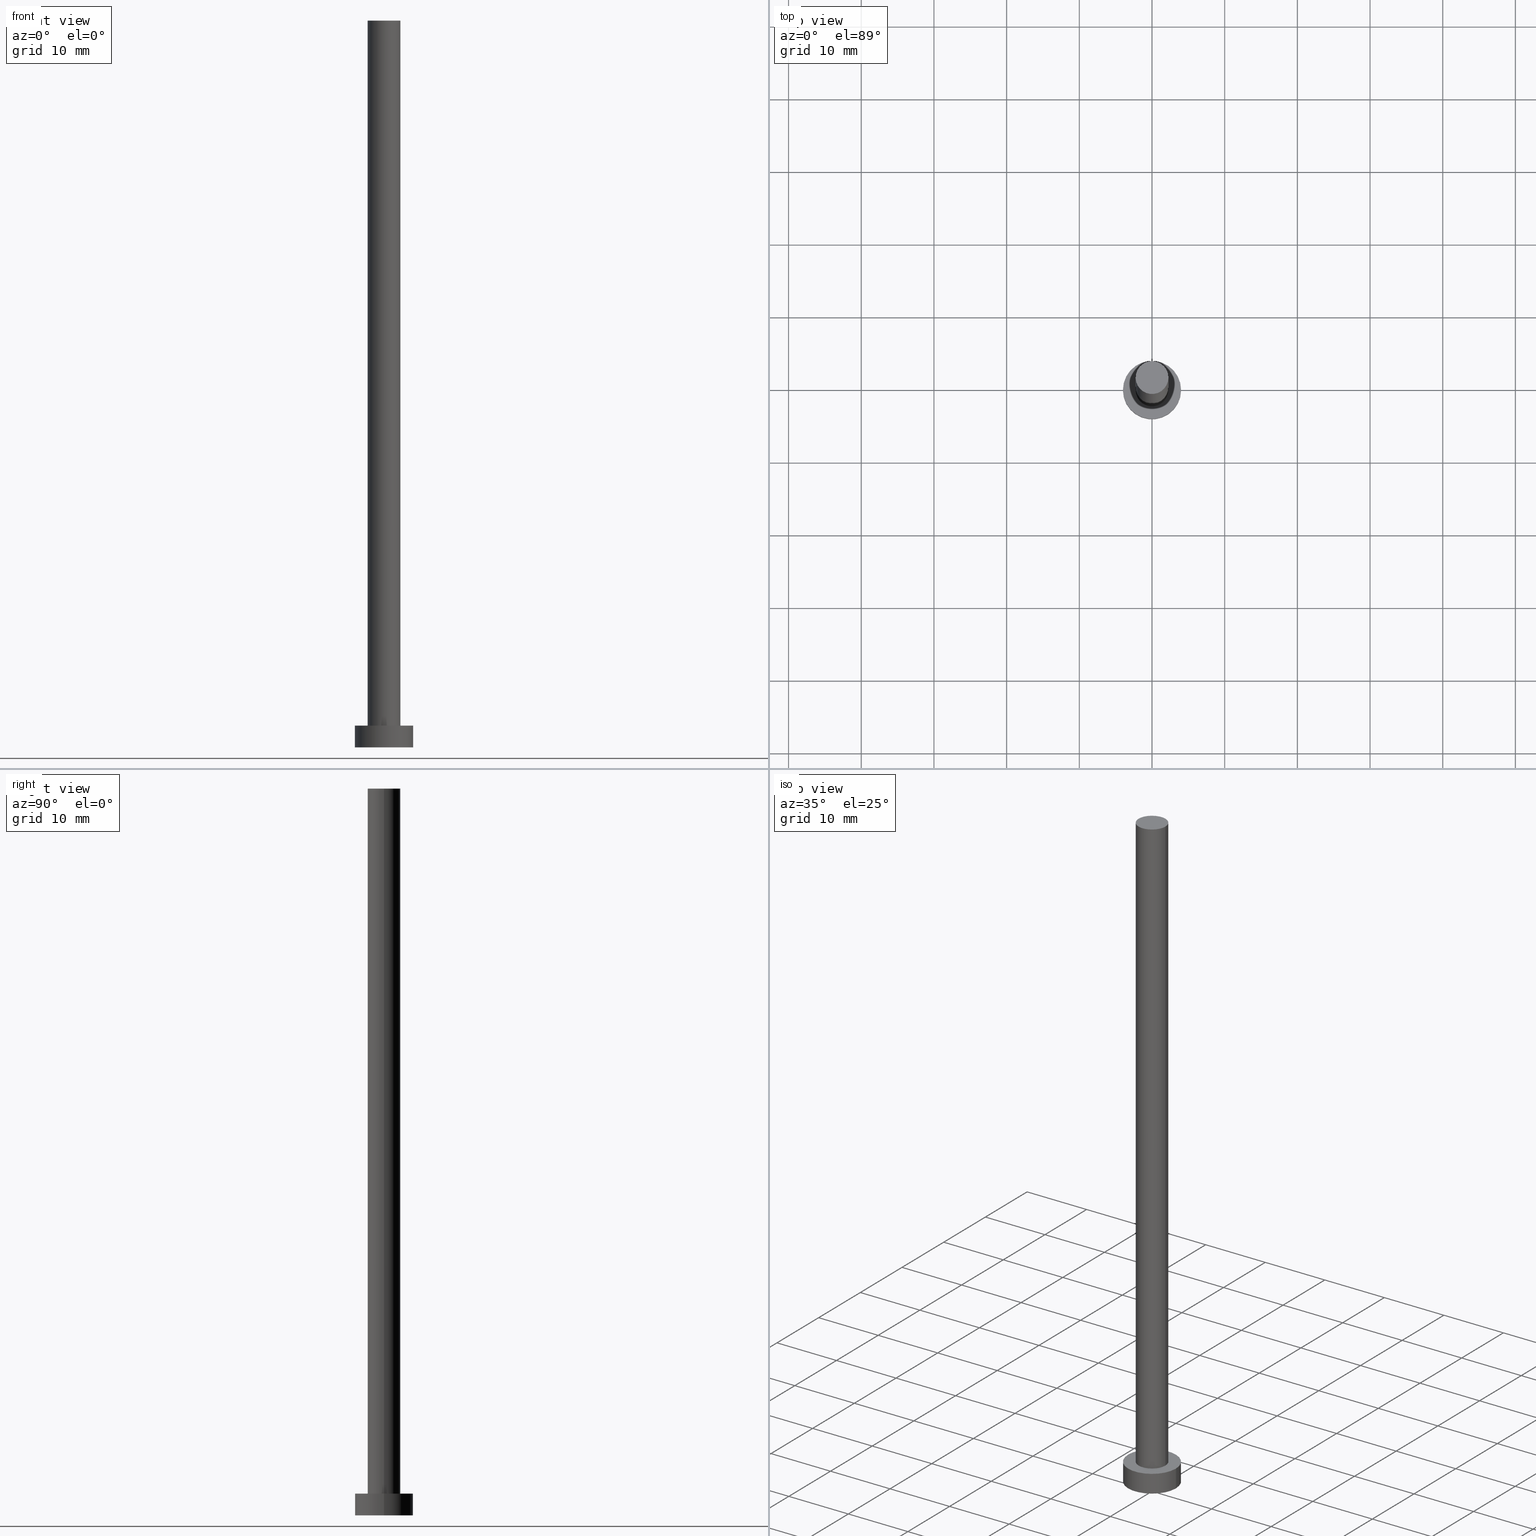
[diagram: canonical four-view strip — front | top / right | iso, engineering-drawing reading convention]
A machine part, canonical four-view strip (front | top / right | iso — engineering-drawing reading convention). The complete STEP part file that produces these views, byte-faithful:
ISO-10303-21;
HEADER;
FILE_DESCRIPTION (( 'STEP AP203' ),
    '1' );
FILE_NAME ('a07d.STEP',
    '2023-02-13T15:05:03',
    ( '' ),
    ( '' ),
    'SwSTEP 2.0',
    'SolidWorks 2019',
    '' );
FILE_SCHEMA (( 'CONFIG_CONTROL_DESIGN' ));
ENDSEC;

DATA;
#1 = FACE_OUTER_BOUND ( 'NONE', #209, .T. ) ;
#2 = CARTESIAN_POINT ( 'NONE',  ( 4.000000000000000000, 4.898587196589412829E-16, 3.000000000000000000 ) ) ;
#3 = APPROVAL_STATUS ( 'not_yet_approved' ) ;
#4 = FACE_OUTER_BOUND ( 'NONE', #173, .T. ) ;
#5 = DIRECTION ( 'NONE',  ( 1.000000000000000000, 0.000000000000000000, 0.000000000000000000 ) ) ;
#6 = CC_DESIGN_PERSON_AND_ORGANIZATION_ASSIGNMENT ( #31, #148, ( #86 ) ) ;
#7 = APPROVAL_ROLE ( '' ) ;
#8 = EDGE_CURVE ( 'NONE', #115, #13, #235, .T. ) ;
#9 = APPLICATION_PROTOCOL_DEFINITION ( 'international standard', 'config_control_design', 1994, #68 ) ;
#10 = AXIS2_PLACEMENT_3D ( 'NONE', #164, #99, #159 ) ;
#11 = LOCAL_TIME ( 16, 5, 3.000000000000000000, #183 ) ;
#12 = VERTEX_POINT ( 'NONE', #93 ) ;
#13 = VERTEX_POINT ( 'NONE', #73 ) ;
#14 = ORIENTED_EDGE ( 'NONE', *, *, #244, .T. ) ;
#15 = ORIENTED_EDGE ( 'NONE', *, *, #252, .T. ) ;
#16 = EDGE_CURVE ( 'NONE', #12, #210, #58, .T. ) ;
#17 = EDGE_LOOP ( 'NONE', ( #249, #254, #15, #92 ) ) ;
#18 = PLANE ( 'NONE',  #10 ) ;
#19 = AXIS2_PLACEMENT_3D ( 'NONE', #66, #144, #137 ) ;
#20 = LINE ( 'NONE', #79, #80 ) ;
#21 = ADVANCED_FACE ( 'NONE', ( #55 ), #150, .F. ) ;
#22 = APPROVAL_STATUS ( 'not_yet_approved' ) ;
#23 = DIRECTION ( 'NONE',  ( -0.000000000000000000, -0.000000000000000000, -1.000000000000000000 ) ) ;
#24 = LINE ( 'NONE', #240, #221 ) ;
#25 = VECTOR ( 'NONE', #136, 1000.000000000000000 ) ;
#26 = AXIS2_PLACEMENT_3D ( 'NONE', #161, #62, #149 ) ;
#27 = DIRECTION ( 'NONE',  ( -1.000000000000000000, 0.000000000000000000, 0.000000000000000000 ) ) ;
#28 = SECURITY_CLASSIFICATION_LEVEL ( 'unclassified' ) ;
#29 = APPLICATION_CONTEXT ( 'configuration controlled 3d designs of mechanical parts and assemblies' ) ;
#30 = APPROVAL_DATE_TIME ( #43, #198 ) ;
#31 = PERSON_AND_ORGANIZATION ( #156, #250 ) ;
#32 = CC_DESIGN_SECURITY_CLASSIFICATION ( #248, ( #130 ) ) ;
#33 = CIRCLE ( 'NONE', #208, 4.000000000000000000 ) ;
#34 = APPROVAL_PERSON_ORGANIZATION ( #127, #198, #216 ) ;
#35 = CARTESIAN_POINT ( 'NONE',  ( 0.000000000000000000, 0.000000000000000000, 0.000000000000000000 ) ) ;
#36 = EDGE_LOOP ( 'NONE', ( #113, #187, #251, #53 ) ) ;
#37 = DIRECTION ( 'NONE',  ( 0.000000000000000000, 0.000000000000000000, 1.000000000000000000 ) ) ;
#38 = CALENDAR_DATE ( 2023, 13, 2 ) ;
#39 = ORIENTED_EDGE ( 'NONE', *, *, #193, .F. ) ;
#40 = CARTESIAN_POINT ( 'NONE',  ( 0.000000000000000000, 0.000000000000000000, 100.0000000000000000 ) ) ;
#41 = CARTESIAN_POINT ( 'NONE',  ( 0.000000000000000000, 0.000000000000000000, 100.0000000000000000 ) ) ;
#42 = CARTESIAN_POINT ( 'NONE',  ( 0.000000000000000000, 0.000000000000000000, 3.000000000000000000 ) ) ;
#43 = DATE_AND_TIME ( #122, #167 ) ;
#44 = DIRECTION ( 'NONE',  ( 0.000000000000000000, 0.000000000000000000, 1.000000000000000000 ) ) ;
#45 = PERSON_AND_ORGANIZATION_ROLE ( 'design_supplier' ) ;
#46 = CARTESIAN_POINT ( 'NONE',  ( 0.000000000000000000, 0.000000000000000000, 3.000000000000000000 ) ) ;
#47 = PERSON_AND_ORGANIZATION_ROLE ( 'creator' ) ;
#48 = ADVANCED_FACE ( 'NONE', ( #227 ), #54, .T. ) ;
#49 = DIRECTION ( 'NONE',  ( 1.000000000000000000, 0.000000000000000000, 0.000000000000000000 ) ) ;
#50 = CLOSED_SHELL ( 'NONE', ( #223, #169, #48, #189, #21, #181, #52 ) ) ;
#51 = APPLICATION_PROTOCOL_DEFINITION ( 'international standard', 'config_control_design', 1994, #29 ) ;
#52 = ADVANCED_FACE ( 'NONE', ( #1 ), #220, .T. ) ;
#53 = ORIENTED_EDGE ( 'NONE', *, *, #246, .F. ) ;
#54 = CYLINDRICAL_SURFACE ( 'NONE', #89, 4.000000000000000000 ) ;
#55 = FACE_OUTER_BOUND ( 'NONE', #151, .T. ) ;
#56 = ORIENTED_EDGE ( 'NONE', *, *, #252, .F. ) ;
#57 = APPROVAL_PERSON_ORGANIZATION ( #88, #158, #224 ) ;
#58 = LINE ( 'NONE', #228, #25 ) ;
#59 = DIRECTION ( 'NONE',  ( -0.000000000000000000, -0.000000000000000000, -1.000000000000000000 ) ) ;
#60 = CARTESIAN_POINT ( 'NONE',  ( 2.250000000000000000, 2.755455298081543792E-16, 100.0000000000000000 ) ) ;
#61 = DATE_AND_TIME ( #84, #139 ) ;
#62 = DIRECTION ( 'NONE',  ( 0.000000000000000000, 0.000000000000000000, 1.000000000000000000 ) ) ;
#63 = DIRECTION ( 'NONE',  ( 1.000000000000000000, 0.000000000000000000, 0.000000000000000000 ) ) ;
#64 = EDGE_CURVE ( 'NONE', #210, #96, #199, .T. ) ;
#65 = APPROVAL_DATE_TIME ( #191, #158 ) ;
#66 = CARTESIAN_POINT ( 'NONE',  ( 0.000000000000000000, 0.000000000000000000, 100.0000000000000000 ) ) ;
#67 = CC_DESIGN_APPROVAL ( #110, ( #248 ) ) ;
#68 = APPLICATION_CONTEXT ( 'configuration controlled 3d designs of mechanical parts and assemblies' ) ;
#69 = AXIS2_PLACEMENT_3D ( 'NONE', #42, #192, #195 ) ;
#70 = LOCAL_TIME ( 16, 5, 3.000000000000000000, #106 ) ;
#71 = ORIENTED_EDGE ( 'NONE', *, *, #226, .T. ) ;
#72 = PRODUCT_DEFINITION ( 'NEZN�M�', '', #130, #114 ) ;
#73 = CARTESIAN_POINT ( 'NONE',  ( -2.250000000000000000, 0.000000000000000000, 3.000000000000000000 ) ) ;
#74 = ORIENTED_EDGE ( 'NONE', *, *, #97, .F. ) ;
#75 = AXIS2_PLACEMENT_3D ( 'NONE', #41, #197, #255 ) ;
#76 = CARTESIAN_POINT ( 'NONE',  ( 0.000000000000000000, 0.000000000000000000, 3.000000000000000000 ) ) ;
#77 = FACE_OUTER_BOUND ( 'NONE', #17, .T. ) ;
#78 = DIRECTION ( 'NONE',  ( -0.000000000000000000, -0.000000000000000000, -1.000000000000000000 ) ) ;
#79 = CARTESIAN_POINT ( 'NONE',  ( -2.250000000000000000, 0.000000000000000000, 100.0000000000000000 ) ) ;
#80 = VECTOR ( 'NONE', #217, 1000.000000000000000 ) ;
#81 = CIRCLE ( 'NONE', #26, 4.000000000000000000 ) ;
#82 = CC_DESIGN_PERSON_AND_ORGANIZATION_ASSIGNMENT ( #201, #100, ( #130 ) ) ;
#83 = CARTESIAN_POINT ( 'NONE',  ( 0.000000000000000000, 0.000000000000000000, 3.000000000000000000 ) ) ;
#84 = CALENDAR_DATE ( 2023, 13, 2 ) ;
#85 = CARTESIAN_POINT ( 'NONE',  ( 0.000000000000000000, 0.000000000000000000, 100.0000000000000000 ) ) ;
#86 = PRODUCT ( 'a07d', 'a07d', '', ( #129 ) ) ;
#87 = CIRCLE ( 'NONE', #247, 4.000000000000000000 ) ;
#88 = PERSON_AND_ORGANIZATION ( #156, #250 ) ;
#89 = AXIS2_PLACEMENT_3D ( 'NONE', #83, #123, #27 ) ;
#90 = CC_DESIGN_APPROVAL ( #198, ( #130 ) ) ;
#91 = VERTEX_POINT ( 'NONE', #2 ) ;
#92 = ORIENTED_EDGE ( 'NONE', *, *, #16, .F. ) ;
#93 = CARTESIAN_POINT ( 'NONE',  ( -4.000000000000000000, 0.000000000000000000, 3.000000000000000000 ) ) ;
#94 = AXIS2_PLACEMENT_3D ( 'NONE', #202, #107, #49 ) ;
#95 = ORIENTED_EDGE ( 'NONE', *, *, #64, .T. ) ;
#96 = VERTEX_POINT ( 'NONE', #175 ) ;
#97 = EDGE_CURVE ( 'NONE', #91, #96, #24, .T. ) ;
#98 = CARTESIAN_POINT ( 'NONE',  ( 0.000000000000000000, 0.000000000000000000, 100.0000000000000000 ) ) ;
#99 = DIRECTION ( 'NONE',  ( 0.000000000000000000, 0.000000000000000000, 1.000000000000000000 ) ) ;
#100 = PERSON_AND_ORGANIZATION_ROLE ( 'creator' ) ;
#101 = CARTESIAN_POINT ( 'NONE',  ( 2.250000000000000000, 2.755455298081543792E-16, 100.0000000000000000 ) ) ;
#102 = CALENDAR_DATE ( 2023, 13, 2 ) ;
#103 = CARTESIAN_POINT ( 'NONE',  ( -2.250000000000000000, 0.000000000000000000, 100.0000000000000000 ) ) ;
#104 = CARTESIAN_POINT ( 'NONE',  ( 0.000000000000000000, 0.000000000000000000, 0.000000000000000000 ) ) ;
#105 = DATE_TIME_ROLE ( 'classification_date' ) ;
#106 = COORDINATED_UNIVERSAL_TIME_OFFSET ( 1, 0, .AHEAD. ) ;
#107 = DIRECTION ( 'NONE',  ( 0.000000000000000000, 0.000000000000000000, 1.000000000000000000 ) ) ;
#108 =( LENGTH_UNIT ( ) NAMED_UNIT ( * ) SI_UNIT ( .MILLI., .METRE. ) );
#109 = ORIENTED_EDGE ( 'NONE', *, *, #246, .T. ) ;
#110 = APPROVAL ( #3, 'NEUR�EN�' ) ;
#111 = ORIENTED_EDGE ( 'NONE', *, *, #207, .T. ) ;
#112 = COORDINATED_UNIVERSAL_TIME_OFFSET ( 1, 0, .AHEAD. ) ;
#113 = ORIENTED_EDGE ( 'NONE', *, *, #207, .F. ) ;
#114 = DESIGN_CONTEXT ( 'detailed design', #68, 'design' ) ;
#115 = VERTEX_POINT ( 'NONE', #182 ) ;
#116 = DIRECTION ( 'NONE',  ( 1.000000000000000000, 0.000000000000000000, 0.000000000000000000 ) ) ;
#117 = AXIS2_PLACEMENT_3D ( 'NONE', #76, #155, #231 ) ;
#118 = DIRECTION ( 'NONE',  ( -0.000000000000000000, -0.000000000000000000, -1.000000000000000000 ) ) ;
#119 = PERSON_AND_ORGANIZATION ( #156, #250 ) ;
#120 = APPROVAL_PERSON_ORGANIZATION ( #147, #110, #7 ) ;
#121 = DIRECTION ( 'NONE',  ( 0.000000000000000000, 0.000000000000000000, 1.000000000000000000 ) ) ;
#122 = CALENDAR_DATE ( 2023, 13, 2 ) ;
#123 = DIRECTION ( 'NONE',  ( -0.000000000000000000, -0.000000000000000000, -1.000000000000000000 ) ) ;
#124 = CALENDAR_DATE ( 2023, 13, 2 ) ;
#125 = LINE ( 'NONE', #101, #143 ) ;
#126 = DATE_TIME_ROLE ( 'creation_date' ) ;
#127 = PERSON_AND_ORGANIZATION ( #156, #250 ) ;
#128 = PRODUCT_DEFINITION_SHAPE ( 'NONE', 'NONE',  #72 ) ;
#129 = MECHANICAL_CONTEXT ( 'NONE', #29, 'mechanical' ) ;
#130 = PRODUCT_DEFINITION_FORMATION_WITH_SPECIFIED_SOURCE ( 'LIBOVOLN�', '', #86, .NOT_KNOWN. ) ;
#131 = CC_DESIGN_DATE_AND_TIME_ASSIGNMENT ( #245, #105, ( #248 ) ) ;
#132 = CIRCLE ( 'NONE', #162, 2.250000000000000000 ) ;
#133 = ORIENTED_EDGE ( 'NONE', *, *, #236, .F. ) ;
#134 = VERTEX_POINT ( 'NONE', #60 ) ;
#135 = VERTEX_POINT ( 'NONE', #103 ) ;
#136 = DIRECTION ( 'NONE',  ( -0.000000000000000000, -0.000000000000000000, -1.000000000000000000 ) ) ;
#137 = DIRECTION ( 'NONE',  ( -1.000000000000000000, 0.000000000000000000, 0.000000000000000000 ) ) ;
#138 = FACE_BOUND ( 'NONE', #152, .T. ) ;
#139 = LOCAL_TIME ( 16, 5, 3.000000000000000000, #141 ) ;
#140 = FACE_OUTER_BOUND ( 'NONE', #170, .T. ) ;
#141 = COORDINATED_UNIVERSAL_TIME_OFFSET ( 1, 0, .AHEAD. ) ;
#142 = CARTESIAN_POINT ( 'NONE',  ( 0.000000000000000000, 0.000000000000000000, 3.000000000000000000 ) ) ;
#143 = VECTOR ( 'NONE', #23, 1000.000000000000000 ) ;
#144 = DIRECTION ( 'NONE',  ( -0.000000000000000000, -0.000000000000000000, -1.000000000000000000 ) ) ;
#145 = PERSON_AND_ORGANIZATION ( #156, #250 ) ;
#146 = UNCERTAINTY_MEASURE_WITH_UNIT (LENGTH_MEASURE( 1.000000000000000082E-05 ), #108, 'distance_accuracy_value', 'NONE');
#147 = PERSON_AND_ORGANIZATION ( #156, #250 ) ;
#148 = PERSON_AND_ORGANIZATION_ROLE ( 'design_owner' ) ;
#149 = DIRECTION ( 'NONE',  ( 1.000000000000000000, 0.000000000000000000, 0.000000000000000000 ) ) ;
#150 = PLANE ( 'NONE',  #168 ) ;
#151 = EDGE_LOOP ( 'NONE', ( #230, #56 ) ) ;
#152 = EDGE_LOOP ( 'NONE', ( #133, #211 ) ) ;
#153 = CC_DESIGN_PERSON_AND_ORGANIZATION_ASSIGNMENT ( #119, #47, ( #72 ) ) ;
#154 = ORIENTED_EDGE ( 'NONE', *, *, #236, .T. ) ;
#155 = DIRECTION ( 'NONE',  ( 0.000000000000000000, 0.000000000000000000, 1.000000000000000000 ) ) ;
#156 = PERSON ( 'NEUR�EN�', 'NEUR�EN�', 'NEUR�EN�', ('NEUR�EN�'), ('NEUR�EN�'), ('NEUR�EN�') ) ;
#157 = FACE_OUTER_BOUND ( 'NONE', #36, .T. ) ;
#158 = APPROVAL ( #233, 'NEUR�EN�' ) ;
#159 = DIRECTION ( 'NONE',  ( 1.000000000000000000, 0.000000000000000000, -0.000000000000000000 ) ) ;
#160 = PERSON_AND_ORGANIZATION ( #156, #250 ) ;
#161 = CARTESIAN_POINT ( 'NONE',  ( 0.000000000000000000, 0.000000000000000000, 0.000000000000000000 ) ) ;
#162 = AXIS2_PLACEMENT_3D ( 'NONE', #85, #234, #215 ) ;
#163 = COORDINATED_UNIVERSAL_TIME_OFFSET ( 1, 0, .AHEAD. ) ;
#164 = CARTESIAN_POINT ( 'NONE',  ( 0.000000000000000000, 0.000000000000000000, 3.000000000000000000 ) ) ;
#165 = CARTESIAN_POINT ( 'NONE',  ( -4.000000000000000000, 0.000000000000000000, 0.000000000000000000 ) ) ;
#166 = CC_DESIGN_DATE_AND_TIME_ASSIGNMENT ( #61, #126, ( #72 ) ) ;
#167 = LOCAL_TIME ( 16, 5, 3.000000000000000000, #163 ) ;
#168 = AXIS2_PLACEMENT_3D ( 'NONE', #35, #37, #171 ) ;
#169 = ADVANCED_FACE ( 'NONE', ( #77 ), #232, .T. ) ;
#170 = EDGE_LOOP ( 'NONE', ( #188, #14 ) ) ;
#171 = DIRECTION ( 'NONE',  ( 1.000000000000000000, 0.000000000000000000, -0.000000000000000000 ) ) ;
#172 = ORIENTED_EDGE ( 'NONE', *, *, #16, .T. ) ;
#173 = EDGE_LOOP ( 'NONE', ( #39, #213, #109, #154 ) ) ;
#174 = AXIS2_PLACEMENT_3D ( 'NONE', #46, #118, #179 ) ;
#175 = CARTESIAN_POINT ( 'NONE',  ( 4.000000000000000000, 4.898587196589412829E-16, 0.000000000000000000 ) ) ;
#176 = DIRECTION ( 'NONE',  ( -1.000000000000000000, 0.000000000000000000, 0.000000000000000000 ) ) ;
#177 = SHAPE_DEFINITION_REPRESENTATION ( #128, #203 ) ;
#178 = DIRECTION ( 'NONE',  ( 0.000000000000000000, 0.000000000000000000, 1.000000000000000000 ) ) ;
#179 = DIRECTION ( 'NONE',  ( -1.000000000000000000, 0.000000000000000000, 0.000000000000000000 ) ) ;
#180 = CIRCLE ( 'NONE', #190, 2.250000000000000000 ) ;
#181 = ADVANCED_FACE ( 'NONE', ( #4 ), #200, .T. ) ;
#182 = CARTESIAN_POINT ( 'NONE',  ( 2.250000000000000000, 2.755455298081543792E-16, 3.000000000000000000 ) ) ;
#183 = COORDINATED_UNIVERSAL_TIME_OFFSET ( 1, 0, .AHEAD. ) ;
#184 =( GEOMETRIC_REPRESENTATION_CONTEXT ( 3 ) GLOBAL_UNCERTAINTY_ASSIGNED_CONTEXT ( ( #146 ) ) GLOBAL_UNIT_ASSIGNED_CONTEXT ( ( #108, #205, #206 ) ) REPRESENTATION_CONTEXT ( 'NONE', 'WORKASPACE' ) );
#185 = LOCAL_TIME ( 16, 5, 3.000000000000000000, #112 ) ;
#186 = PRODUCT_RELATED_PRODUCT_CATEGORY ( 'detail', '', ( #86 ) ) ;
#187 = ORIENTED_EDGE ( 'NONE', *, *, #193, .T. ) ;
#188 = ORIENTED_EDGE ( 'NONE', *, *, #204, .T. ) ;
#189 = ADVANCED_FACE ( 'NONE', ( #138, #140 ), #18, .T. ) ;
#190 = AXIS2_PLACEMENT_3D ( 'NONE', #98, #214, #116 ) ;
#191 = DATE_AND_TIME ( #38, #185 ) ;
#192 = DIRECTION ( 'NONE',  ( 0.000000000000000000, 0.000000000000000000, 1.000000000000000000 ) ) ;
#193 = EDGE_CURVE ( 'NONE', #134, #115, #125, .T. ) ;
#194 = CIRCLE ( 'NONE', #69, 2.250000000000000000 ) ;
#195 = DIRECTION ( 'NONE',  ( 1.000000000000000000, 0.000000000000000000, 0.000000000000000000 ) ) ;
#196 = DIRECTION ( 'NONE',  ( 1.000000000000000000, 0.000000000000000000, 0.000000000000000000 ) ) ;
#197 = DIRECTION ( 'NONE',  ( 0.000000000000000000, 0.000000000000000000, 1.000000000000000000 ) ) ;
#198 = APPROVAL ( #22, 'NEUR�EN�' ) ;
#199 = CIRCLE ( 'NONE', #229, 4.000000000000000000 ) ;
#200 = CYLINDRICAL_SURFACE ( 'NONE', #253, 2.250000000000000000 ) ;
#201 = PERSON_AND_ORGANIZATION ( #156, #250 ) ;
#202 = CARTESIAN_POINT ( 'NONE',  ( 0.000000000000000000, 0.000000000000000000, 0.000000000000000000 ) ) ;
#203 = ADVANCED_BREP_SHAPE_REPRESENTATION ( 'a07d', ( #241, #94 ), #184 ) ;
#204 = EDGE_CURVE ( 'NONE', #12, #91, #33, .T. ) ;
#205 =( NAMED_UNIT ( * ) PLANE_ANGLE_UNIT ( ) SI_UNIT ( $, .RADIAN. ) );
#206 =( NAMED_UNIT ( * ) SI_UNIT ( $, .STERADIAN. ) SOLID_ANGLE_UNIT ( ) );
#207 = EDGE_CURVE ( 'NONE', #134, #135, #132, .T. ) ;
#208 = AXIS2_PLACEMENT_3D ( 'NONE', #142, #178, #5 ) ;
#209 = EDGE_LOOP ( 'NONE', ( #71, #111 ) ) ;
#210 = VERTEX_POINT ( 'NONE', #165 ) ;
#211 = ORIENTED_EDGE ( 'NONE', *, *, #8, .F. ) ;
#212 = ORIENTED_EDGE ( 'NONE', *, *, #204, .F. ) ;
#213 = ORIENTED_EDGE ( 'NONE', *, *, #226, .F. ) ;
#214 = DIRECTION ( 'NONE',  ( 0.000000000000000000, 0.000000000000000000, 1.000000000000000000 ) ) ;
#215 = DIRECTION ( 'NONE',  ( 1.000000000000000000, 0.000000000000000000, 0.000000000000000000 ) ) ;
#216 = APPROVAL_ROLE ( '' ) ;
#217 = DIRECTION ( 'NONE',  ( -0.000000000000000000, -0.000000000000000000, -1.000000000000000000 ) ) ;
#218 = CC_DESIGN_PERSON_AND_ORGANIZATION_ASSIGNMENT ( #145, #45, ( #130 ) ) ;
#219 = PERSON_AND_ORGANIZATION_ROLE ( 'classification_officer' ) ;
#220 = PLANE ( 'NONE',  #75 ) ;
#221 = VECTOR ( 'NONE', #78, 1000.000000000000000 ) ;
#222 = CC_DESIGN_PERSON_AND_ORGANIZATION_ASSIGNMENT ( #160, #219, ( #248 ) ) ;
#223 = ADVANCED_FACE ( 'NONE', ( #157 ), #242, .T. ) ;
#224 = APPROVAL_ROLE ( '' ) ;
#225 = EDGE_LOOP ( 'NONE', ( #74, #212, #172, #95 ) ) ;
#226 = EDGE_CURVE ( 'NONE', #135, #134, #180, .T. ) ;
#227 = FACE_OUTER_BOUND ( 'NONE', #225, .T. ) ;
#228 = CARTESIAN_POINT ( 'NONE',  ( -4.000000000000000000, 0.000000000000000000, 3.000000000000000000 ) ) ;
#229 = AXIS2_PLACEMENT_3D ( 'NONE', #104, #44, #63 ) ;
#230 = ORIENTED_EDGE ( 'NONE', *, *, #64, .F. ) ;
#231 = DIRECTION ( 'NONE',  ( 1.000000000000000000, 0.000000000000000000, 0.000000000000000000 ) ) ;
#232 = CYLINDRICAL_SURFACE ( 'NONE', #174, 4.000000000000000000 ) ;
#233 = APPROVAL_STATUS ( 'not_yet_approved' ) ;
#234 = DIRECTION ( 'NONE',  ( 0.000000000000000000, 0.000000000000000000, 1.000000000000000000 ) ) ;
#235 = CIRCLE ( 'NONE', #117, 2.250000000000000000 ) ;
#236 = EDGE_CURVE ( 'NONE', #13, #115, #194, .T. ) ;
#237 = CC_DESIGN_APPROVAL ( #158, ( #72 ) ) ;
#238 = CARTESIAN_POINT ( 'NONE',  ( 0.000000000000000000, 0.000000000000000000, 3.000000000000000000 ) ) ;
#239 = DATE_AND_TIME ( #102, #11 ) ;
#240 = CARTESIAN_POINT ( 'NONE',  ( 4.000000000000000000, 4.898587196589412829E-16, 3.000000000000000000 ) ) ;
#241 = MANIFOLD_SOLID_BREP ( 'P�idat vysunut�m3', #50 ) ;
#242 = CYLINDRICAL_SURFACE ( 'NONE', #19, 2.250000000000000000 ) ;
#243 = APPROVAL_DATE_TIME ( #239, #110 ) ;
#244 = EDGE_CURVE ( 'NONE', #91, #12, #87, .T. ) ;
#245 = DATE_AND_TIME ( #124, #70 ) ;
#246 = EDGE_CURVE ( 'NONE', #135, #13, #20, .T. ) ;
#247 = AXIS2_PLACEMENT_3D ( 'NONE', #238, #121, #196 ) ;
#248 = SECURITY_CLASSIFICATION ( '', '', #28 ) ;
#249 = ORIENTED_EDGE ( 'NONE', *, *, #244, .F. ) ;
#250 = ORGANIZATION ( 'NEUR�EN�', 'NEUR�EN�', '' ) ;
#251 = ORIENTED_EDGE ( 'NONE', *, *, #8, .T. ) ;
#252 = EDGE_CURVE ( 'NONE', #96, #210, #81, .T. ) ;
#253 = AXIS2_PLACEMENT_3D ( 'NONE', #40, #59, #176 ) ;
#254 = ORIENTED_EDGE ( 'NONE', *, *, #97, .T. ) ;
#255 = DIRECTION ( 'NONE',  ( 1.000000000000000000, 0.000000000000000000, -0.000000000000000000 ) ) ;
ENDSEC;
END-ISO-10303-21;
